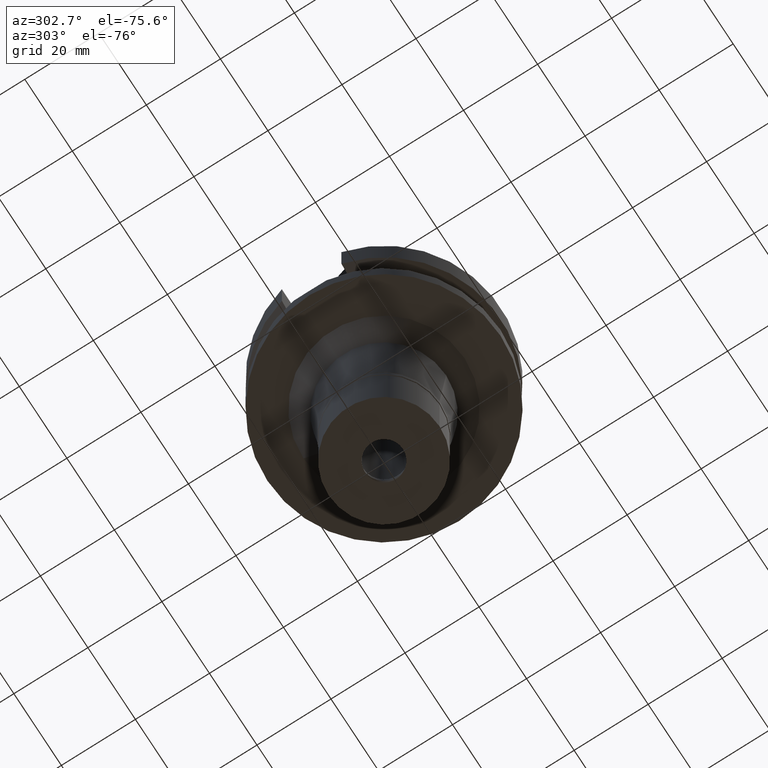
[diagram: clean part render]
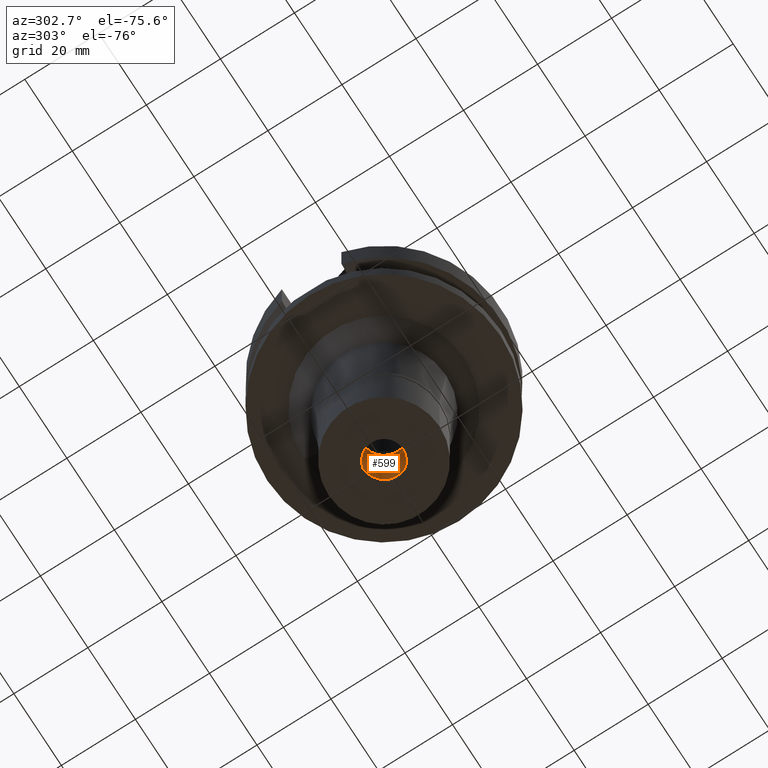
[diagram: same view with one face highlighted and labeled with its STEP entity id]
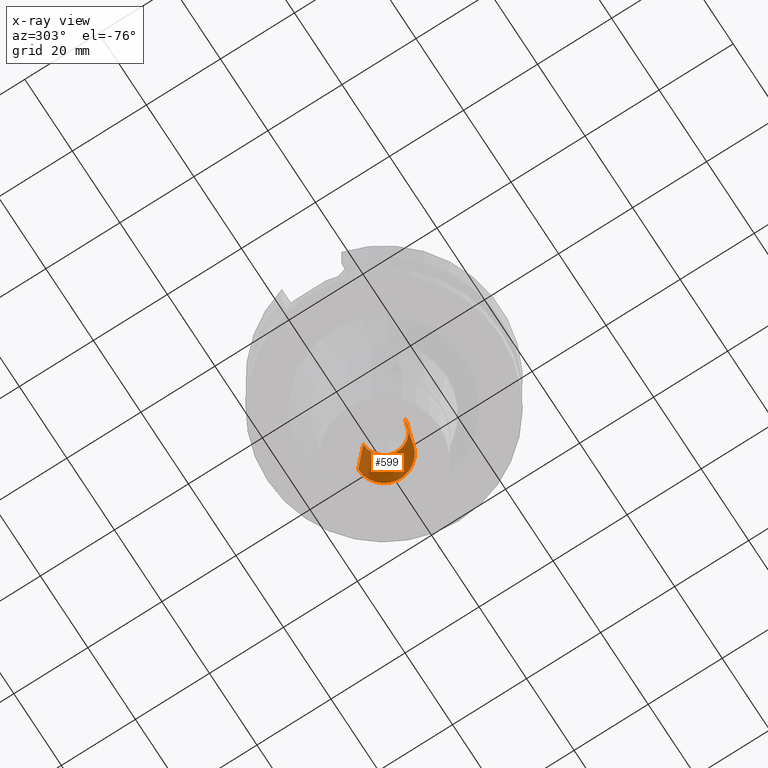
[diagram: x-ray of the same camera — body ghosted, the highlighted face saturated]
A machine part, auxiliary view. The second image highlights one B-rep face of the part: STEP entity #599.
The next image is the same camera in x-ray: the body ghosted, the highlighted face saturated — about 7% of this face is hidden behind the body in this view.
In plain terms, the highlighted conical surface has half-angle 4 deg.
Its self-contained STEP definition (entity closure, byte-faithful):
#17 = EDGE_CURVE ( 'NONE', #1632, #1614, #363, .T. ) ;
#97 = CARTESIAN_POINT ( 'NONE',  ( 0.0000000000000000000, -5.599999999999999645, -48.27906724059999988 ) ) ;
#129 = ORIENTED_EDGE ( 'NONE', *, *, #1025, .F. ) ;
#286 = DIRECTION ( 'NONE',  ( 0.0000000000000000000, 0.06975647374412166646, 0.9975640502598245307 ) ) ;
#302 = ORIENTED_EDGE ( 'NONE', *, *, #17, .T. ) ;
#314 = CARTESIAN_POINT ( 'NONE',  ( 0.0000000000000000000, 0.0000000000000000000, -48.27906724059999988 ) ) ;
#351 = LINE ( 'NONE', #1124, #784 ) ;
#363 = CIRCLE ( 'NONE', #2138, 7.000000000000000000 ) ;
#501 = DIRECTION ( 'NONE',  ( 0.0000000000000000000, 0.0000000000000000000, -1.000000000000000000 ) ) ;
#596 = EDGE_CURVE ( 'NONE', #1097, #618, #2040, .T. ) ;
#599 = ADVANCED_FACE ( 'NONE', ( #2279 ), #2996, .F. ) ;
#604 = EDGE_LOOP ( 'NONE', ( #302, #3100, #1461, #129 ) ) ;
#618 = VERTEX_POINT ( 'NONE', #97 ) ;
#660 = CARTESIAN_POINT ( 'NONE',  ( 0.0000000000000000000, 5.599999999999999645, -48.27906724059999988 ) ) ;
#772 = CARTESIAN_POINT ( 'NONE',  ( 0.0000000000000000000, 0.0000000000000000000, -68.29999999999999716 ) ) ;
#776 = LINE ( 'NONE', #844, #2744 ) ;
#784 = VECTOR ( 'NONE', #2231, 1000.000000000000114 ) ;
#807 = EDGE_CURVE ( 'NONE', #1614, #618, #776, .T. ) ;
#820 = CARTESIAN_POINT ( 'NONE',  ( 0.0000000000000000000, 0.0000000000000000000, -58.28953362029999852 ) ) ;
#844 = CARTESIAN_POINT ( 'NONE',  ( 0.0000000000000000000, -7.000000000000000000, -68.29999999999999716 ) ) ;
#1014 = DIRECTION ( 'NONE',  ( 0.0000000000000000000, -1.000000000000000000, 0.0000000000000000000 ) ) ;
#1025 = EDGE_CURVE ( 'NONE', #1632, #1097, #351, .T. ) ;
#1050 = DIRECTION ( 'NONE',  ( 0.0000000000000000000, 0.0000000000000000000, -1.000000000000000000 ) ) ;
#1097 = VERTEX_POINT ( 'NONE', #660 ) ;
#1124 = CARTESIAN_POINT ( 'NONE',  ( 0.0000000000000000000, 7.000000000000000000, -68.29999999999999716 ) ) ;
#1461 = ORIENTED_EDGE ( 'NONE', *, *, #596, .F. ) ;
#1614 = VERTEX_POINT ( 'NONE', #2797 ) ;
#1632 = VERTEX_POINT ( 'NONE', #2369 ) ;
#1684 = AXIS2_PLACEMENT_3D ( 'NONE', #820, #2736, #1014 ) ;
#2018 = DIRECTION ( 'NONE',  ( 0.0000000000000000000, 1.000000000000000000, 0.0000000000000000000 ) ) ;
#2040 = CIRCLE ( 'NONE', #2693, 5.599999999999999645 ) ;
#2138 = AXIS2_PLACEMENT_3D ( 'NONE', #772, #501, #2957 ) ;
#2231 = DIRECTION ( 'NONE',  ( 0.0000000000000000000, -0.06975647374412166646, 0.9975640502598245307 ) ) ;
#2279 = FACE_OUTER_BOUND ( 'NONE', #604, .T. ) ;
#2369 = CARTESIAN_POINT ( 'NONE',  ( 0.0000000000000000000, 7.000000000000000000, -68.29999999999999716 ) ) ;
#2693 = AXIS2_PLACEMENT_3D ( 'NONE', #314, #1050, #2018 ) ;
#2736 = DIRECTION ( 'NONE',  ( 0.0000000000000000000, 0.0000000000000000000, -1.000000000000000000 ) ) ;
#2744 = VECTOR ( 'NONE', #286, 1000.000000000000114 ) ;
#2797 = CARTESIAN_POINT ( 'NONE',  ( 0.0000000000000000000, -7.000000000000000000, -68.29999999999999716 ) ) ;
#2957 = DIRECTION ( 'NONE',  ( 0.0000000000000000000, 1.000000000000000000, 0.0000000000000000000 ) ) ;
#2996 = CONICAL_SURFACE ( 'NONE', #1684, 6.299999999999999822, 0.06981317007975955391 ) ;
#3100 = ORIENTED_EDGE ( 'NONE', *, *, #807, .T. ) ;